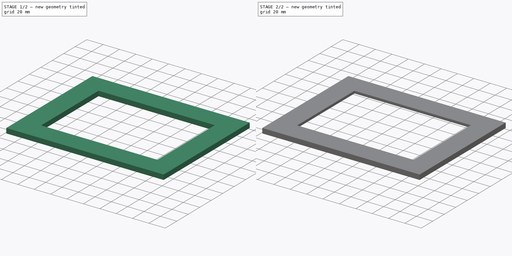
[diagram: build sequence overview — one tinted view per stage of 2, left to right]
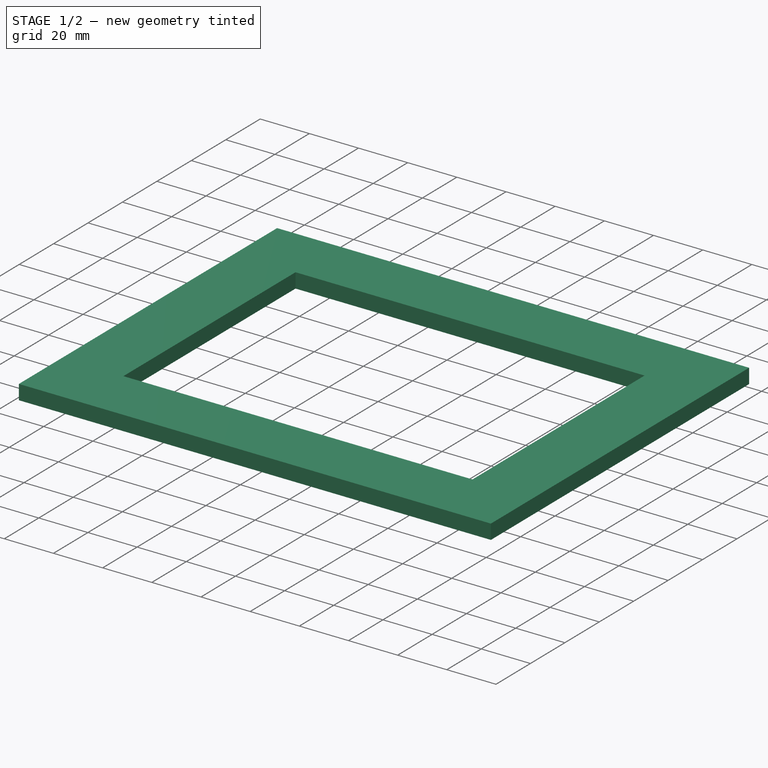
[diagram: stage 1 of 2 — iso view after this stage's code; geometry added in this stage tinted green]
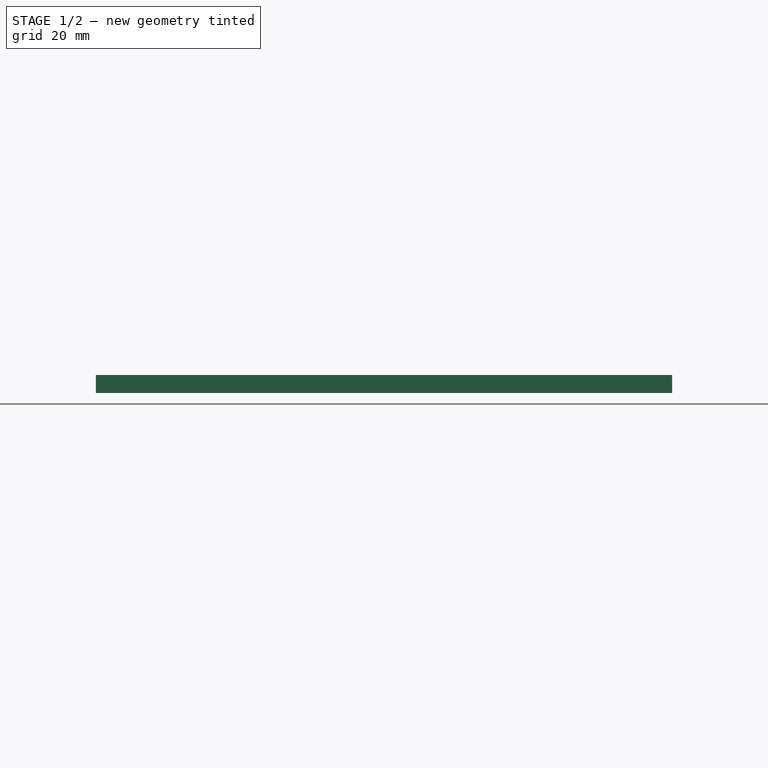
[diagram: stage 1 of 2 — front view after this stage's code; geometry added in this stage tinted green]
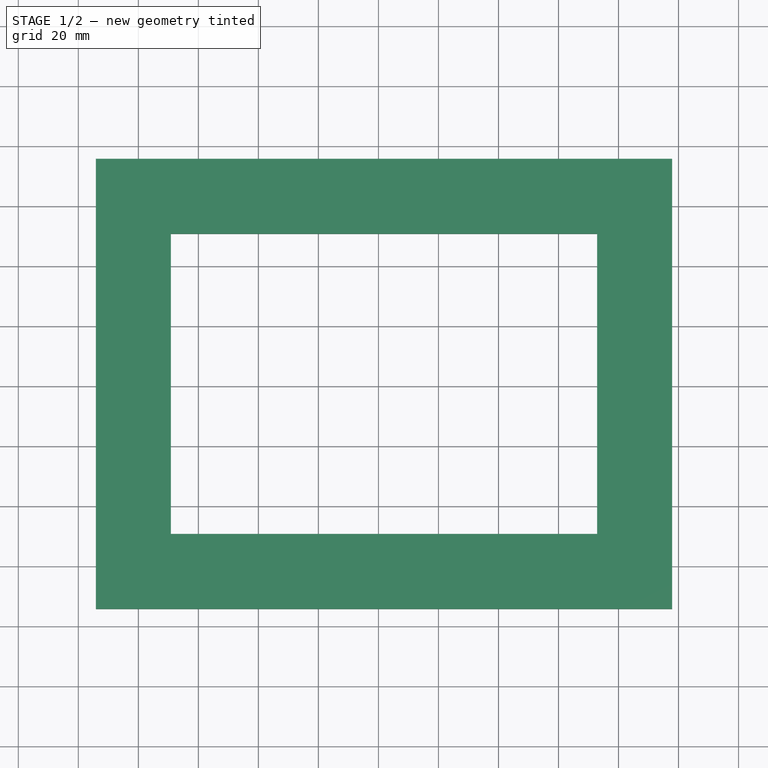
[diagram: stage 1 of 2 — top view after this stage's code; geometry added in this stage tinted green]
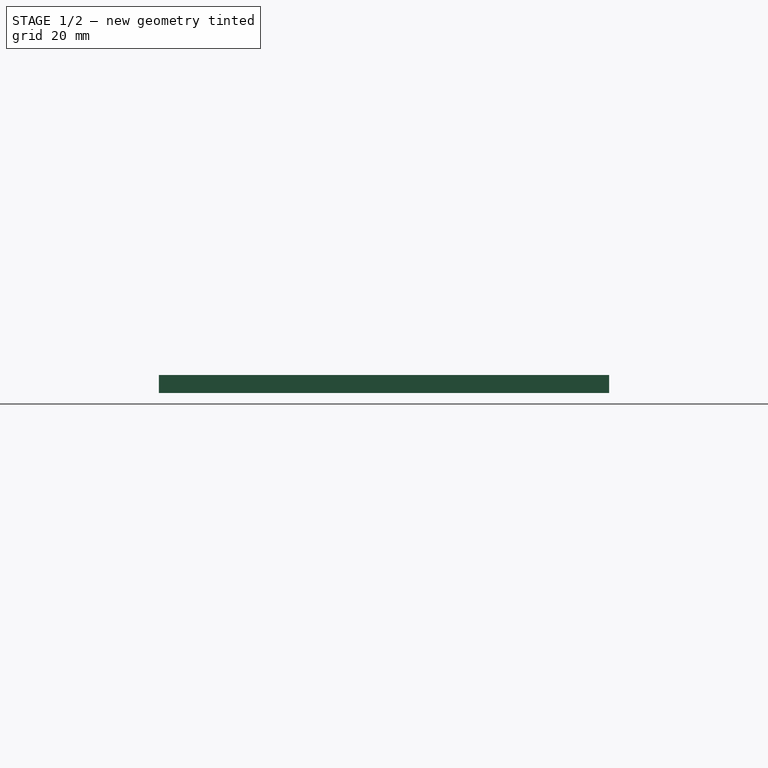
[diagram: stage 1 of 2 — right view after this stage's code; geometry added in this stage tinted green]
FCSTD DOCUMENT  (FreeCAD 0.21R33771 (Git))
Label: bezel-integration3 JUST ADDED ALL BUTTONS
License: All rights reserved
LicenseURL: http://en.wikipedia.org/wiki/All_rights_reserved
objects: Sketcher::SketchObject×4, PartDesign::Pad×1, PartDesign::Pocket×1, PartDesign::Body×1
note: 9 computed .brp shape members not serialized (recipe doc carries the construction recipe); baked Part::Feature solids carry a one-line shape summary decoded from their .brp

FEATURE [Sketcher::SketchObject] Sketch  label="bezel"
  FullyConstrained = true
  MapMode = 5
  Support = -> [XY_Plane]
  sketch-geometry (8):
    g0: LineSegment StartX=-69.1431 StartY=50.8022 StartZ=0 EndX=72.8569 EndY=50.8022 EndZ=0
    g1: LineSegment StartX=72.8569 StartY=50.8022 StartZ=0 EndX=72.8569 EndY=-49.1978 EndZ=0
    g2: LineSegment StartX=72.8569 StartY=-49.1978 StartZ=0 EndX=-69.1431 EndY=-49.1978 EndZ=0
    g3: LineSegment StartX=-69.1431 StartY=-49.1978 StartZ=0 EndX=-69.1431 EndY=50.8022 EndZ=0
    g4: LineSegment StartX=-94.1431 StartY=75.8022 StartZ=0 EndX=97.8569 EndY=75.8022 EndZ=0
    g5: LineSegment StartX=97.8569 StartY=75.8022 StartZ=0 EndX=97.8569 EndY=-74.1978 EndZ=0
    g6: LineSegment StartX=97.8569 StartY=-74.1978 StartZ=0 EndX=-94.1431 EndY=-74.1978 EndZ=0
    g7: LineSegment StartX=-94.1431 StartY=-74.1978 StartZ=0 EndX=-94.1431 EndY=75.8022 EndZ=0
  constraints (24):
    c: Coincident(g0,g1)
    c: Coincident(g1,g2)
    c: Coincident(g2,g3)
    c: Coincident(g3,g0)
    c: Horizontal(g0)
    c: Horizontal(g2)
    c: Vertical(g1)
    c: Vertical(g3)
    c: Coincident(g4,g5)
    c: Coincident(g5,g6)
    c: Coincident(g6,g7)
    c: Coincident(g7,g4)
    c: Horizontal(g4)
    c: Horizontal(g6)
    c: Vertical(g5)
    c: Vertical(g7)
    c: Distance(g-1,g0) = 85.8
    c: Distance(g-1,g0) = 88.82
    c: DistanceX(g0,g0) = 142
    c: Distance(g2,g6) = 25
    c: DistanceY(g1,g1) = 100
    c: Distance(g0,g4) = 25
    c: Distance(g0,g7) = 25
    c: Distance(g0,g5) = 25
FEATURE [PartDesign::Pad] Pad  label="Bezel"
  Direction = (0,0,1)
  Length = 6
  Length2 = 10
  Profile = -> Sketch
  ReferenceAxis = -> Sketch [N_Axis]
  Type = 0
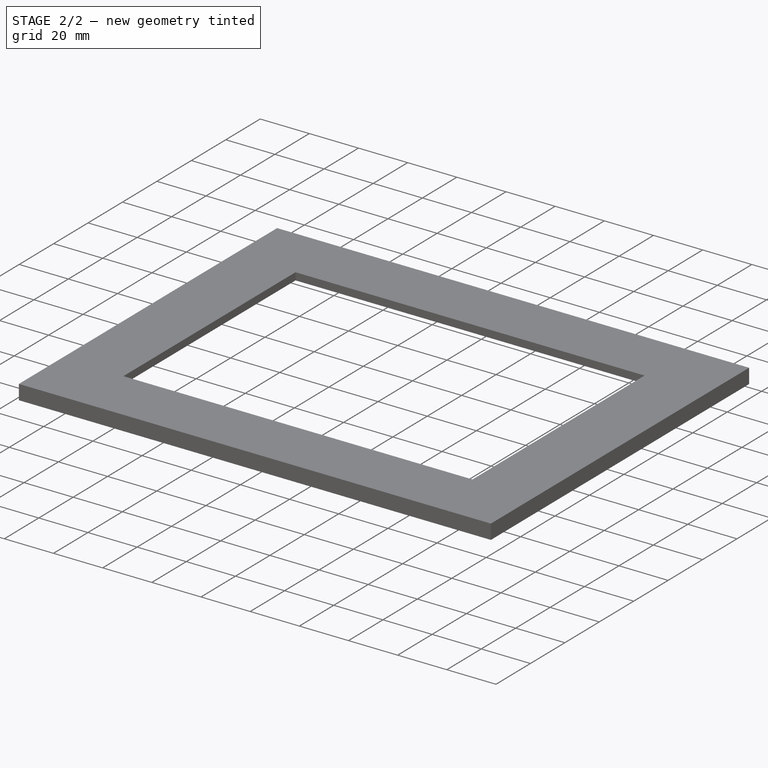
[diagram: stage 2 of 2 — iso view after this stage's code; geometry added in this stage tinted green]
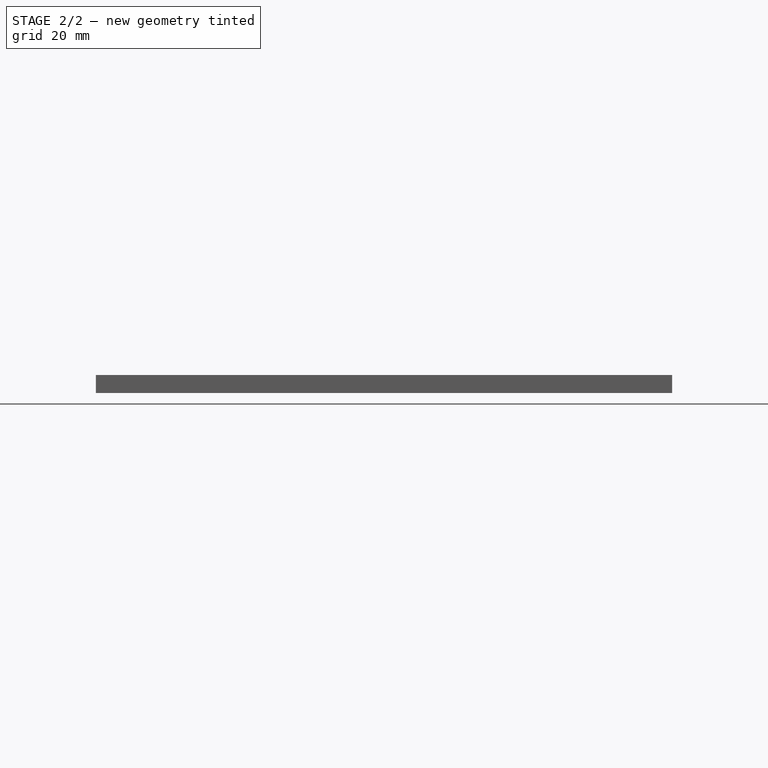
[diagram: stage 2 of 2 — front view after this stage's code; geometry added in this stage tinted green]
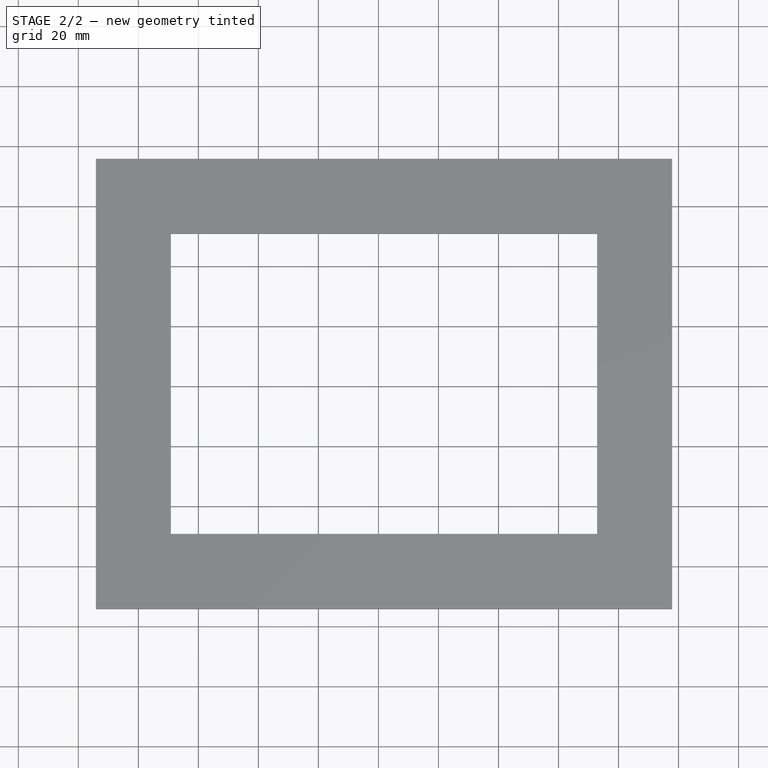
[diagram: stage 2 of 2 — top view after this stage's code; geometry added in this stage tinted green]
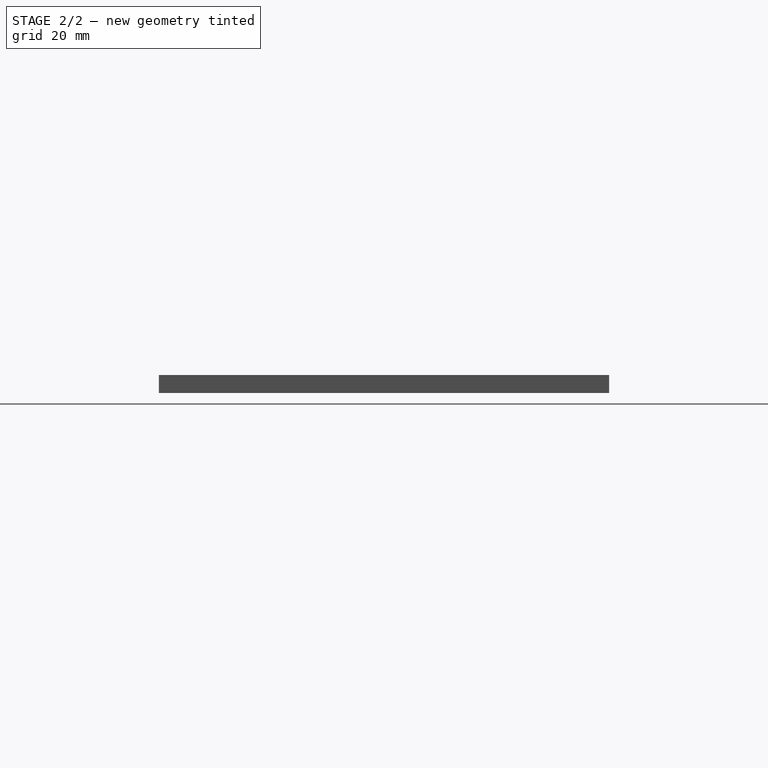
[diagram: stage 2 of 2 — right view after this stage's code; geometry added in this stage tinted green]
FEATURE [Sketcher::SketchObject] Sketch001  label="Lcd Inset"
  FullyConstrained = true
  MapMode = 5
  Placement = pos=(0,0,0) rot=(1,0,0;3.14159rad)
  Support = -> [Pad]
  sketch-geometry (4):
    g0: LineSegment StartX=-78.66 StartY=60.5 StartZ=0 EndX=77.34 EndY=60.5 EndZ=0
    g1: LineSegment StartX=77.34 StartY=60.5 StartZ=0 EndX=77.34 EndY=-58.5 EndZ=0
    g2: LineSegment StartX=77.34 StartY=-58.5 StartZ=0 EndX=-78.66 EndY=-58.5 EndZ=0
    g3: LineSegment StartX=-78.66 StartY=-58.5 StartZ=0 EndX=-78.66 EndY=60.5 EndZ=0
  constraints (12):
    c: Coincident(g0,g1)
    c: Coincident(g1,g2)
    c: Coincident(g2,g3)
    c: Coincident(g3,g0)
    c: Horizontal(g0)
    c: Horizontal(g2)
    c: Vertical(g1)
    c: Vertical(g3)
    c: DistanceX(g0,g0) = 156
    c: DistanceY(g1,g1) = 119
    c: DistanceX(g-2,g2) = -78.66
    c: Distance(g-1,g0) = 60.5
FEATURE [PartDesign::Pocket] Pocket
  BaseFeature = -> Pad
  Direction = (0,0,1)
  Length = 3
  Length2 = 5
  Profile = -> Sketch001
  ReferenceAxis = -> Sketch001 [N_Axis]
  Type = 0
FEATURE [Sketcher::SketchObject] Sketch002  label="bottom buttons"
  FullyConstrained = true
  MapMode = 5
  Placement = pos=(0,0,6) rot=(0,0,1;0rad)
  Support = -> [Pocket]
  sketch-geometry (36):
    g0: LineSegment StartX=-94.14 StartY=75.79 StartZ=0 EndX=97.85 EndY=75.79 EndZ=0
    g1: LineSegment StartX=97.85 StartY=75.79 StartZ=0 EndX=97.85 EndY=-74.19 EndZ=0
    g2: LineSegment StartX=97.85 StartY=-74.19 StartZ=0 EndX=-94.14 EndY=-74.19 EndZ=0
    g3: LineSegment StartX=-94.14 StartY=-74.19 StartZ=0 EndX=-94.14 EndY=75.79 EndZ=0
    g4: LineSegment StartX=-67.14 StartY=-70.19 StartZ=0 EndX=-54.14 EndY=-70.19 EndZ=0
    g5: LineSegment StartX=-54.14 StartY=-70.19 StartZ=0 EndX=-54.14 EndY=-60.19 EndZ=0
    g6: LineSegment StartX=-54.14 StartY=-60.19 StartZ=0 EndX=-67.14 EndY=-60.19 EndZ=0
    g7: LineSegment StartX=-67.14 StartY=-60.19 StartZ=0 EndX=-67.14 EndY=-70.19 EndZ=0
    g8: LineSegment StartX=57.85 StartY=-60.19 StartZ=0 EndX=70.85 EndY=-60.19 EndZ=0
    g9: LineSegment StartX=70.85 StartY=-60.19 StartZ=0 EndX=70.85 EndY=-70.19 EndZ=0
    g10: LineSegment StartX=70.85 StartY=-70.19 StartZ=0 EndX=57.85 EndY=-70.19 EndZ=0
    g11: LineSegment StartX=57.85 StartY=-70.19 StartZ=0 EndX=57.85 EndY=-60.19 EndZ=0
    g12: LineSegment StartX=-46.71 StartY=-60.19 StartZ=0 EndX=-36.71 EndY=-60.19 EndZ=0
    g13: LineSegment StartX=-36.71 StartY=-60.19 StartZ=0 EndX=-36.71 EndY=-70.19 EndZ=0
    g14: LineSegment StartX=-36.71 StartY=-70.19 StartZ=0 EndX=-46.71 EndY=-70.19 EndZ=0
    g15: LineSegment StartX=-46.71 StartY=-70.19 StartZ=0 EndX=-46.71 EndY=-60.19 EndZ=0
    g16: LineSegment StartX=-29.22 StartY=-60.19 StartZ=0 EndX=-19.22 EndY=-60.19 EndZ=0
    g17: LineSegment StartX=-19.22 StartY=-60.19 StartZ=0 EndX=-19.22 EndY=-70.19 EndZ=0
    g18: LineSegment StartX=-19.22 StartY=-70.19 StartZ=0 EndX=-29.22 EndY=-70.19 EndZ=0
    g19: LineSegment StartX=-29.22 StartY=-70.19 StartZ=0 EndX=-29.22 EndY=-60.19 EndZ=0
    g20: LineSegment StartX=-11.79 StartY=-60.19 StartZ=0 EndX=-1.79 EndY=-60.19 EndZ=0
    g21: LineSegment StartX=-1.79 StartY=-60.19 StartZ=0 EndX=-1.79 EndY=-70.19 EndZ=0
    g22: LineSegment StartX=-1.79 StartY=-70.19 StartZ=0 EndX=-11.79 EndY=-70.19 EndZ=0
    g23: LineSegment StartX=-11.79 StartY=-70.19 StartZ=0 EndX=-11.79 EndY=-60.19 EndZ=0
    g24: LineSegment StartX=5.64 StartY=-60.19 StartZ=0 EndX=15.64 EndY=-60.19 EndZ=0
    g25: LineSegment StartX=15.64 StartY=-60.19 StartZ=0 EndX=15.64 EndY=-70.19 EndZ=0
    g26: LineSegment StartX=15.64 StartY=-70.19 StartZ=0 EndX=5.64 EndY=-70.19 EndZ=0
    g27: LineSegment StartX=5.64 StartY=-70.19 StartZ=0 EndX=5.64 EndY=-60.19 EndZ=0
    g28: LineSegment StartX=23.07 StartY=-60.19 StartZ=0 EndX=33.07 EndY=-60.19 EndZ=0
    g29: LineSegment StartX=33.07 StartY=-60.19 StartZ=0 EndX=33.07 EndY=-70.19 EndZ=0
    g30: LineSegment StartX=33.07 StartY=-70.19 StartZ=0 EndX=23.07 EndY=-70.19 EndZ=0
    g31: LineSegment StartX=23.07 StartY=-70.19 StartZ=0 EndX=23.07 EndY=-60.19 EndZ=0
    g32: LineSegment StartX=40.5 StartY=-60.19 StartZ=0 EndX=50.5 EndY=-60.19 EndZ=0
    g33: LineSegment StartX=50.5 StartY=-60.19 StartZ=0 EndX=50.5 EndY=-70.19 EndZ=0
    g34: LineSegment StartX=50.5 StartY=-70.19 StartZ=0 EndX=40.5 EndY=-70.19 EndZ=0
    g35: LineSegment StartX=40.5 StartY=-70.19 StartZ=0 EndX=40.5 EndY=-60.19 EndZ=0
  constraints (108):
    c: Coincident(g0,g1)
    c: Coincident(g1,g2)
    c: Coincident(g2,g3)
    c: Coincident(g3,g0)
    c: Horizontal(g0)
    c: Horizontal(g2)
    c: Vertical(g1)
    c: Vertical(g3)
    c: DistanceY(g-1,g1) = -74.19
    c: DistanceX(g-2,g2) = -94.14
    c: DistanceY(g3,g3) = 149.98
    c: DistanceX(g2,g2) = 191.99
    c: Coincident(g4,g5)
    c: Coincident(g5,g6)
    c: Coincident(g6,g7)
    c: Coincident(g7,g4)
    c: Horizontal(g4)
    c: Horizontal(g6)
    c: Vertical(g5)
    c: Vertical(g7)
    c: DistanceX(g4,g4) = 13
    c: DistanceY(g5,g5) = 10
    c: Distance(g4,g2) = 4
    c: Distance(g4,g3) = 27
    c: Coincident(g8,g9)
    c: Coincident(g9,g10)
    c: Coincident(g10,g11)
    c: Coincident(g11,g8)
    c: Horizontal(g8)
    c: Horizontal(g10)
    c: Vertical(g9)
    c: Vertical(g11)
    c: DistanceX(g10,g10) = 13
    c: DistanceY(g9,g9) = 10
    c: Distance(g9,g1) = 27
    c: Coincident(g12,g13)
    c: Coincident(g13,g14)
    c: Coincident(g14,g15)
    c: Coincident(g15,g12)
    c: Horizontal(g12)
    c: Horizontal(g14)
    c: Vertical(g13)
    c: Vertical(g15)
    c: Coincident(g16,g17)
    c: Coincident(g17,g18)
    c: Coincident(g18,g19)
    c: Coincident(g19,g16)
    c: Horizontal(g16)
    c: Horizontal(g18)
    c: Vertical(g17)
    c: Vertical(g19)
    c: Coincident(g20,g21)
    c: Coincident(g21,g22)
    c: Coincident(g22,g23)
    c: Coincident(g23,g20)
    c: Horizontal(g20)
    c: Horizontal(g22)
    c: Vertical(g21)
    c: Vertical(g23)
    c: Coincident(g24,g25)
    c: Coincident(g25,g26)
    c: Coincident(g26,g27)
    c: Coincident(g27,g24)
    c: Horizontal(g24)
    c: Horizontal(g26)
    c: Vertical(g25)
    c: Vertical(g27)
    c: Coincident(g28,g29)
    c: Coincident(g29,g30)
    c: Coincident(g30,g31)
    c: Coincident(g31,g28)
    c: Horizontal(g28)
    c: Horizontal(g30)
    c: Vertical(g29)
    c: Vertical(g31)
    c: Coincident(g32,g33)
    c: Coincident(g33,g34)
    c: Coincident(g34,g35)
    c: Coincident(g35,g32)
    c: Horizontal(g32)
    c: Horizontal(g34)
    c: Vertical(g33)
    c: Vertical(g35)
    c: DistanceX(g14,g14) = 10
    c: DistanceY(g13,g13) = 10
    c: Distance(g14,g5) = 7.43
    c: DistanceX(g18,g18) = 10
    c: DistanceY(g19,g19) = 10
    c: DistanceX(g22,g22) = 10
    c: DistanceY(g21,g21) = 10
    c: Distance(g22,g17) = 7.43
    c: DistanceX(g26,g26) = 10
    c: DistanceY(g27,g27) = 10
    c: Distance(g26,g21) = 7.43
    c: DistanceX(g30,g30) = 10
    c: DistanceY(g29,g29) = 10
    c: Distance(g30,g25) = 7.43
    c: DistanceY(g33,g33) = 10
    c: DistanceX(g34,g34) = 10
    c: DistanceX(g29,g34) = 7.43
    c: Distance(g13,g2) = 4
    c: Distance(g18,g2) = 4
    c: Distance(g22,g2) = 4
    c: Distance(g26,g2) = 4
    c: Distance(g30,g2) = 4
    c: Distance(g34,g2) = 4
    c: Distance(g10,g2) = 4
    c: Distance(g33,g10) = 7.35
FEATURE [Sketcher::SketchObject] Sketch003
  FullyConstrained = true
  MapMode = 5
  Placement = pos=(0,0,6) rot=(0,0,1;0rad)
  Support = -> [Pocket]
  sketch-geometry (99):
    g0: LineSegment StartX=-89 StartY=-52.44 StartZ=0 EndX=-76 EndY=-52.44 EndZ=0
    g1: LineSegment StartX=-76 StartY=-52.44 StartZ=0 EndX=-76 EndY=-62.44 EndZ=0
    g2: LineSegment StartX=-76 StartY=-62.44 StartZ=0 EndX=-89 EndY=-62.44 EndZ=0
    g3: LineSegment StartX=-89 StartY=-62.44 StartZ=0 EndX=-89 EndY=-52.44 EndZ=0
    g4: LineSegment StartX=-94 StartY=-64.33 StartZ=0 EndX=-94 EndY=-74.33 EndZ=0
    g5: LineSegment StartX=-89 StartY=-45.69 StartZ=0 EndX=-76 EndY=-45.69 EndZ=0
    g6: LineSegment StartX=-76 StartY=-45.69 StartZ=0 EndX=-76 EndY=-55.69 EndZ=0
    g7: LineSegment StartX=-76 StartY=-55.69 StartZ=0 EndX=-89 EndY=-55.69 EndZ=0
    g8: LineSegment StartX=-89 StartY=-55.69 StartZ=0 EndX=-89 EndY=-45.69 EndZ=0
    g9: LineSegment StartX=-89 StartY=-32.44 StartZ=0 EndX=-79 EndY=-32.44 EndZ=0
    g10: LineSegment StartX=-79 StartY=-32.44 StartZ=0 EndX=-79 EndY=-42.44 EndZ=0
    g11: LineSegment StartX=-79 StartY=-42.44 StartZ=0 EndX=-89 EndY=-42.44 EndZ=0
    g12: LineSegment StartX=-89 StartY=-42.44 StartZ=0 EndX=-89 EndY=-32.44 EndZ=0
    g13: LineSegment StartX=-89 StartY=-19.19 StartZ=0 EndX=-79 EndY=-19.19 EndZ=0
    g14: LineSegment StartX=-79 StartY=-19.19 StartZ=0 EndX=-79 EndY=-29.19 EndZ=0
    g15: LineSegment StartX=-79 StartY=-29.19 StartZ=0 EndX=-89 EndY=-29.19 EndZ=0
    g16: LineSegment StartX=-89 StartY=-29.19 StartZ=0 EndX=-89 EndY=-19.19 EndZ=0
    g17: LineSegment StartX=-89 StartY=-5.94 StartZ=0 EndX=-79 EndY=-5.94 EndZ=0
    g18: LineSegment StartX=-79 StartY=-5.94 StartZ=0 EndX=-79 EndY=-15.94 EndZ=0
    g19: LineSegment StartX=-79 StartY=-15.94 StartZ=0 EndX=-89 EndY=-15.94 EndZ=0
    g20: LineSegment StartX=-89 StartY=-15.94 StartZ=0 EndX=-89 EndY=-5.94 EndZ=0
    g21: LineSegment StartX=-89 StartY=7.31 StartZ=0 EndX=-79 EndY=7.31 EndZ=0
    g22: LineSegment StartX=-79 StartY=7.31 StartZ=0 EndX=-79 EndY=-2.69 EndZ=0
    g23: LineSegment StartX=-79 StartY=-2.69 StartZ=0 EndX=-89 EndY=-2.69 EndZ=0
    g24: LineSegment StartX=-89 StartY=-2.69 StartZ=0 EndX=-89 EndY=7.31 EndZ=0
    g25: LineSegment StartX=-89 StartY=20.56 StartZ=0 EndX=-79 EndY=20.56 EndZ=0
    g26: LineSegment StartX=-79 StartY=20.56 StartZ=0 EndX=-79 EndY=10.56 EndZ=0
    g27: LineSegment StartX=-79 StartY=10.56 StartZ=0 EndX=-89 EndY=10.56 EndZ=0
    g28: LineSegment StartX=-89 StartY=10.56 StartZ=0 EndX=-89 EndY=20.56 EndZ=0
    g29: LineSegment StartX=-89 StartY=33.81 StartZ=0 EndX=-79 EndY=33.81 EndZ=0
    g30: LineSegment StartX=-79 StartY=33.81 StartZ=0 EndX=-79 EndY=23.81 EndZ=0
    g31: LineSegment StartX=-79 StartY=23.81 StartZ=0 EndX=-89 EndY=23.81 EndZ=0
    g32: LineSegment StartX=-89 StartY=23.81 StartZ=0 EndX=-89 EndY=33.81 EndZ=0
    g33: Circle CenterX=-84 CenterY=52 CenterZ=0 NormalX=0 NormalY=0 NormalZ=1 AngleXU=0 Radius=3.5
    g34: LineSegment StartX=79.85 StartY=-52.44 StartZ=0 EndX=92.85 EndY=-52.44 EndZ=0
    g35: LineSegment StartX=92.85 StartY=-52.44 StartZ=0 EndX=92.85 EndY=-62.44 EndZ=0
    g36: LineSegment StartX=92.85 StartY=-62.44 StartZ=0 EndX=79.85 EndY=-62.44 EndZ=0
    g37: LineSegment StartX=79.85 StartY=-62.44 StartZ=0 EndX=79.85 EndY=-52.44 EndZ=0
    g38: LineSegment StartX=97.85 StartY=-74.19 StartZ=0 EndX=97.85 EndY=75.8 EndZ=0
    g39: LineSegment StartX=79.85 StartY=-39.44 StartZ=0 EndX=92.85 EndY=-39.44 EndZ=0
    g40: LineSegment StartX=92.85 StartY=-39.44 StartZ=0 EndX=92.85 EndY=-49.44 EndZ=0
    g41: LineSegment StartX=92.85 StartY=-49.44 StartZ=0 EndX=79.85 EndY=-49.44 EndZ=0
    g42: LineSegment StartX=79.85 StartY=-49.44 StartZ=0 EndX=79.85 EndY=-39.44 EndZ=0
    g43: LineSegment StartX=82.85 StartY=-26.44 StartZ=0 EndX=92.85 EndY=-26.44 EndZ=0
    g44: LineSegment StartX=92.85 StartY=-26.44 StartZ=0 EndX=92.85 EndY=-36.44 EndZ=0
    g45: LineSegment StartX=92.85 StartY=-36.44 StartZ=0 EndX=82.85 EndY=-36.44 EndZ=0
    g46: LineSegment StartX=82.85 StartY=-36.44 StartZ=0 EndX=82.85 EndY=-26.44 EndZ=0
    g47: LineSegment StartX=82.85 StartY=-13.44 StartZ=0 EndX=92.85 EndY=-13.44 EndZ=0
    g48: LineSegment StartX=92.85 StartY=-13.44 StartZ=0 EndX=92.85 EndY=-23.44 EndZ=0
    g49: LineSegment StartX=92.85 StartY=-23.44 StartZ=0 EndX=82.85 EndY=-23.44 EndZ=0
    g50: LineSegment StartX=82.85 StartY=-23.44 StartZ=0 EndX=82.85 EndY=-13.44 EndZ=0
    g51: LineSegment StartX=82.85 StartY=-0.44 StartZ=0 EndX=92.85 EndY=-0.44 EndZ=0
    g52: LineSegment StartX=92.85 StartY=-0.44 StartZ=0 EndX=92.85 EndY=-10.44 EndZ=0
    g53: LineSegment StartX=92.85 StartY=-10.44 StartZ=0 EndX=82.85 EndY=-10.44 EndZ=0
    g54: LineSegment StartX=82.85 StartY=-10.44 StartZ=0 EndX=82.85 EndY=-0.44 EndZ=0
    g55: LineSegment StartX=82.85 StartY=12.56 StartZ=0 EndX=92.85 EndY=12.56 EndZ=0
    g56: LineSegment StartX=92.85 StartY=12.56 StartZ=0 EndX=92.85 EndY=2.56 EndZ=0
    g57: LineSegment StartX=92.85 StartY=2.56 StartZ=0 EndX=82.85 EndY=2.56 EndZ=0
    g58: LineSegment StartX=82.85 StartY=2.56 StartZ=0 EndX=82.85 EndY=12.56 EndZ=0
    g59: LineSegment StartX=82.85 StartY=25.56 StartZ=0 EndX=92.85 EndY=25.56 EndZ=0
    g60: LineSegment StartX=92.85 StartY=25.56 StartZ=0 EndX=92.85 EndY=15.56 EndZ=0
    g61: LineSegment StartX=92.85 StartY=15.56 StartZ=0 EndX=82.85 EndY=15.56 EndZ=0
    g62: LineSegment StartX=82.85 StartY=15.56 StartZ=0 EndX=82.85 EndY=25.56 EndZ=0
    g63: LineSegment StartX=82.85 StartY=38.56 StartZ=0 EndX=92.85 EndY=38.56 EndZ=0
    g64: LineSegment StartX=92.85 StartY=38.56 StartZ=0 EndX=92.85 EndY=28.56 EndZ=0
    g65: LineSegment StartX=92.85 StartY=28.56 StartZ=0 EndX=82.85 EndY=28.56 EndZ=0
    g66: LineSegment StartX=82.85 StartY=28.56 StartZ=0 EndX=82.85 EndY=38.56 EndZ=0
    g67: LineSegment StartX=79.85 StartY=51.56 StartZ=0 EndX=92.85 EndY=51.56 EndZ=0
    g68: LineSegment StartX=92.85 StartY=51.56 StartZ=0 EndX=92.85 EndY=41.56 EndZ=0
    g69: LineSegment StartX=92.85 StartY=41.56 StartZ=0 EndX=79.85 EndY=41.56 EndZ=0
    g70: LineSegment StartX=79.85 StartY=41.56 StartZ=0 EndX=79.85 EndY=51.56 EndZ=0
    g71: LineSegment StartX=97.85 StartY=75.8 StartZ=0 EndX=-94 EndY=75.8 EndZ=0
    g72: Circle CenterX=-65 CenterY=65.8 CenterZ=0 NormalX=0 NormalY=0 NormalZ=1 AngleXU=0 Radius=3.5
    g73: Circle CenterX=65 CenterY=65.8 CenterZ=0 NormalX=0 NormalY=0 NormalZ=1 AngleXU=0 Radius=3.5
    g74: LineSegment StartX=-94 StartY=75.8 StartZ=0 EndX=-94 EndY=-74.33 EndZ=0
    g75: LineSegment StartX=-50 StartY=70.8 StartZ=0 EndX=-40 EndY=70.8 EndZ=0
    g76: LineSegment StartX=-40 StartY=70.8 StartZ=0 EndX=-40 EndY=60.8 EndZ=0
    g77: LineSegment StartX=-40 StartY=60.8 StartZ=0 EndX=-50 EndY=60.8 EndZ=0
    g78: LineSegment StartX=-50 StartY=60.8 StartZ=0 EndX=-50 EndY=70.8 EndZ=0
    g79: LineSegment StartX=-32 StartY=70.8 StartZ=0 EndX=-22 EndY=70.8 EndZ=0
    g80: LineSegment StartX=-22 StartY=70.8 StartZ=0 EndX=-22 EndY=60.8 EndZ=0
    g81: LineSegment StartX=-22 StartY=60.8 StartZ=0 EndX=-32 EndY=60.8 EndZ=0
    g82: LineSegment StartX=-32 StartY=60.8 StartZ=0 EndX=-32 EndY=70.8 EndZ=0
    g83: LineSegment StartX=-14 StartY=70.8 StartZ=0 EndX=-4 EndY=70.8 EndZ=0
    g84: LineSegment StartX=-4 StartY=70.8 StartZ=0 EndX=-4 EndY=60.8 EndZ=0
    g85: LineSegment StartX=-4 StartY=60.8 StartZ=0 EndX=-14 EndY=60.8 EndZ=0
    g86: LineSegment StartX=-14 StartY=60.8 StartZ=0 EndX=-14 EndY=70.8 EndZ=0
    g87: LineSegment StartX=4 StartY=70.8 StartZ=0 EndX=14 EndY=70.8 EndZ=0
    g88: LineSegment StartX=14 StartY=70.8 StartZ=0 EndX=14 EndY=60.8 EndZ=0
    g89: LineSegment StartX=14 StartY=60.8 StartZ=0 EndX=4 EndY=60.8 EndZ=0
    g90: LineSegment StartX=4 StartY=60.8 StartZ=0 EndX=4 EndY=70.8 EndZ=0
    g91: LineSegment StartX=22 StartY=70.8 StartZ=0 EndX=32 EndY=70.8 EndZ=0
    g92: LineSegment StartX=32 StartY=70.8 StartZ=0 EndX=32 EndY=60.8 EndZ=0
    g93: LineSegment StartX=32 StartY=60.8 StartZ=0 EndX=22 EndY=60.8 EndZ=0
    g94: LineSegment StartX=22 StartY=60.8 StartZ=0 EndX=22 EndY=70.8 EndZ=0
    g95: LineSegment StartX=40 StartY=70.8 StartZ=0 EndX=50 EndY=70.8 EndZ=0
    g96: LineSegment StartX=50 StartY=70.8 StartZ=0 EndX=50 EndY=60.8 EndZ=0
    g97: LineSegment StartX=50 StartY=60.8 StartZ=0 EndX=40 EndY=60.8 EndZ=0
    g98: LineSegment StartX=40 StartY=60.8 StartZ=0 EndX=40 EndY=70.8 EndZ=0
  constraints (298):
    c: Coincident(g0,g1)
    c: Coincident(g1,g2)
    c: Coincident(g2,g3)
    c: Coincident(g3,g0)
    c: Horizontal(g0)
    c: Horizontal(g2)
    c: Vertical(g1)
    c: Vertical(g3)
    c: Vertical(g4)
    c: DistanceX(g-2,g4) = -94
    c: DistanceY(g-1,g4) = -74.33
    c: Distance(g2,g4) = 5
    c: Coincident(g5,g6)
    c: Coincident(g6,g7)
    c: Coincident(g7,g8)
    c: Coincident(g8,g5)
    c: Horizontal(g5)
    c: Horizontal(g7)
    c: Vertical(g6)
    c: Vertical(g8)
    c: Coincident(g9,g10)
    c: Coincident(g10,g11)
    c: Coincident(g11,g12)
    c: Coincident(g12,g9)
    c: Horizontal(g9)
    c: Horizontal(g11)
    c: Vertical(g10)
    c: Vertical(g12)
    c: Coincident(g13,g14)
    c: Coincident(g14,g15)
    c: Coincident(g15,g16)
    c: Coincident(g16,g13)
    c: Horizontal(g13)
    c: Horizontal(g15)
    c: Vertical(g14)
    c: Vertical(g16)
    c: Coincident(g17,g18)
    c: Coincident(g18,g19)
    c: Coincident(g19,g20)
    c: Coincident(g20,g17)
    c: Horizontal(g17)
    c: Horizontal(g19)
    c: Vertical(g18)
    c: Vertical(g20)
    c: Coincident(g21,g22)
    c: Coincident(g22,g23)
    c: Coincident(g23,g24)
    c: Coincident(g24,g21)
    c: Horizontal(g21)
    c: Horizontal(g23)
    c: Vertical(g22)
    c: Vertical(g24)
    c: Coincident(g25,g26)
    c: Coincident(g26,g27)
    c: Coincident(g27,g28)
    c: Coincident(g28,g25)
    c: Horizontal(g25)
    c: Horizontal(g27)
    c: Vertical(g26)
    c: Vertical(g28)
    c: Coincident(g29,g30)
    c: Coincident(g30,g31)
    c: Coincident(g31,g32)
    c: Coincident(g32,g29)
    c: Horizontal(g29)
    c: Horizontal(g31)
    c: Vertical(g30)
    c: Vertical(g32)
    c: Distance(g7,g4) = 5
    c: DistanceY(g6,g6) = 10
    c: DistanceY(g1,g1) = 10
    c: DistanceX(g11,g11) = 10
    c: DistanceX(g15,g15) = 10
    c: DistanceX(g19,g19) = 10
    c: DistanceX(g23,g23) = 10
    c: DistanceX(g27,g27) = 10
    c: DistanceX(g29,g29) = 10
    c: DistanceY(g10,g10) = 10
    c: DistanceY(g14,g14) = 10
    c: DistanceY(g18,g18) = 10
    c: DistanceY(g22,g22) = 10
    c: DistanceY(g26,g26) = 10
    c: DistanceY(g30,g30) = 10
    c: Distance(g11,g4) = 5
    c: Distance(g15,g4) = 5
    c: Distance(g19,g4) = 5
    c: Distance(g23,g4) = 5
    c: Distance(g27,g4) = 5
    c: Distance(g31,g4) = 5
    c: Distance(g3,g7) = 3.25
    c: Distance(g5,g11) = 3.25
    c: Distance(g9,g15) = 3.25
    c: Distance(g13,g19) = 3.25
    c: Distance(g17,g23) = 3.25
    c: Distance(g27,g21) = 3.25
    c: Distance(g31,g25) = 3.25
    c: DistanceY(g-1,g1) = -62.44
    c: Diameter(g33) = 7
    c: Distance(g33,g4) = 10
    c: DistanceY(g-1,g33) = 52
    c: Coincident(g34,g35)
    c: Coincident(g35,g36)
    c: Coincident(g36,g37)
    c: Coincident(g37,g34)
    c: Horizontal(g34)
    c: Horizontal(g36)
    c: Vertical(g35)
    c: Vertical(g37)
    c: DistanceY(g-1,g35) = -62.44
    c: DistanceY(g35,g35) = 10
    c: DistanceX(g34,g34) = 13
    c: Vertical(g38)
    c: DistanceX(g-2,g38) = 97.85
    c: DistanceY(g-1,g38) = 75.8
    c: DistanceY(g38,g38) = 149.99
    c: Distance(g35,g38) = 5
    c: DistanceX(g7,g7) = 13
    c: Equal(g0,g7)
    c: Equal(g1,g4)
    c: Coincident(g39,g40)
    c: Coincident(g40,g41)
    c: Coincident(g41,g42)
    c: Coincident(g42,g39)
    c: Horizontal(g39)
    c: Horizontal(g41)
    c: Vertical(g40)
    c: Vertical(g42)
    c: Equal(g40,g35)
    c: Equal(g41,g34)
    c: Distance(g40,g38) = 5
    c: Distance(g34,g40) = 3
    c: Coincident(g43,g44)
    c: Coincident(g44,g45)
    c: Coincident(g45,g46)
    c: Coincident(g46,g43)
    c: Horizontal(g43)
    c: Horizontal(g45)
    c: Vertical(g44)
    c: Vertical(g46)
    c: DistanceX(g45,g45) = 10
    c: DistanceY(g44,g44) = 10
    c: Distance(g44,g38) = 5
    c: Distance(g39,g44) = 3
    c: Coincident(g47,g48)
    c: Coincident(g48,g49)
    c: Coincident(g49,g50)
    c: Coincident(g50,g47)
    c: Horizontal(g47)
    c: Horizontal(g49)
    c: Vertical(g48)
    c: Vertical(g50)
    c: Equal(g43,g49)
    c: Equal(g48,g44)
    c: DistanceY(g43,g48) = 3
    c: Distance(g48,g38) = 5
    c: Coincident(g51,g52)
    c: Coincident(g52,g53)
    c: Coincident(g53,g54)
    c: Coincident(g54,g51)
    c: Horizontal(g51)
    c: Horizontal(g53)
    c: Vertical(g52)
    c: Vertical(g54)
    c: Coincident(g55,g56)
    c: Coincident(g56,g57)
    c: Coincident(g57,g58)
    c: Coincident(g58,g55)
    c: Horizontal(g55)
    c: Horizontal(g57)
    c: Vertical(g56)
    c: Vertical(g58)
    c: Coincident(g59,g60)
    c: Coincident(g60,g61)
    c: Coincident(g61,g62)
    c: Coincident(g62,g59)
    c: Horizontal(g59)
    c: Horizontal(g61)
    c: Vertical(g60)
    c: Vertical(g62)
    c: Coincident(g63,g64)
    c: Coincident(g64,g65)
    c: Coincident(g65,g66)
    c: Coincident(g66,g63)
    c: Horizontal(g63)
    c: Horizontal(g65)
    c: Vertical(g64)
    c: Vertical(g66)
    c: Coincident(g67,g68)
    c: Coincident(g68,g69)
    c: Coincident(g69,g70)
    c: Coincident(g70,g67)
    c: Horizontal(g67)
    c: Vertical(g68)
    c: Equal(g53,g47)
    c: Equal(g52,g48)
    c: Equal(g57,g51)
    c: Equal(g56,g52)
    c: Distance(g52,g38) = 5
    c: Distance(g52,g47) = 3
    c: Distance(g56,g38) = 5
    c: Distance(g51,g56) = 3
    c: Equal(g61,g55)
    c: Equal(g56,g60)
    c: Distance(g60,g55) = 3
    c: Distance(g60,g38) = 5
    c: Equal(g65,g59)
    c: Equal(g64,g60)
    c: Distance(g64,g38) = 5
    c: Distance(g65,g59) = 3
    c: Equal(g70,g66)
    c: Distance(g68,g38) = 5
    c: DistanceX(g69,g69) = 13
    c: Distance(g63,g69) = 3
    c: DistanceY(g68,g68) = 10
    c: DistanceX(g-2,g67) = 79.85
    c: Coincident(g71,g38)
    c: Horizontal(g71)
    c: Diameter(g72) = 7
    c: Distance(g72,g71) = 10
    c: DistanceX(g-2,g72) = -65
    c: Diameter(g73) = 7
    c: DistanceX(g-2,g73) = 65
    c: Distance(g73,g71) = 10
    c: Coincident(g74,g71)
    c: Coincident(g74,g4)
    c: Vertical(g74)
    c: Coincident(g75,g76)
    c: Coincident(g76,g77)
    c: Coincident(g77,g78)
    c: Coincident(g78,g75)
    c: Horizontal(g75)
    c: Horizontal(g77)
    c: Vertical(g76)
    c: Vertical(g78)
    c: Coincident(g79,g80)
    c: Coincident(g80,g81)
    c: Coincident(g81,g82)
    c: Coincident(g82,g79)
    c: Horizontal(g79)
    c: Horizontal(g81)
    c: Vertical(g80)
    c: Vertical(g82)
    c: Coincident(g83,g84)
    c: Coincident(g84,g85)
    c: Coincident(g85,g86)
    c: Coincident(g86,g83)
    c: Horizontal(g83)
    c: Horizontal(g85)
    c: Vertical(g84)
    c: Vertical(g86)
    c: Coincident(g87,g88)
    c: Coincident(g88,g89)
    c: Coincident(g89,g90)
    c: Coincident(g90,g87)
    c: Horizontal(g87)
    c: Horizontal(g89)
    c: Vertical(g88)
    c: Vertical(g90)
    c: Coincident(g91,g92)
    c: Coincident(g92,g93)
    c: Coincident(g93,g94)
    c: Coincident(g94,g91)
    c: Horizontal(g91)
    c: Horizontal(g93)
    c: Vertical(g92)
    c: Vertical(g94)
    c: Coincident(g95,g96)
    c: Coincident(g96,g97)
    c: Coincident(g97,g98)
    c: Coincident(g98,g95)
    c: Horizontal(g95)
    c: Horizontal(g97)
    c: Vertical(g96)
    c: Vertical(g98)
    c: DistanceX(g75,g75) = 10
    c: DistanceY(g76,g76) = 10
    c: Equal(g82,g86)
    c: Equal(g86,g90)
    c: Equal(g90,g94)
    c: Equal(g94,g98)
    c: Equal(g98,g76)
    c: Equal(g75,g79)
    c: Equal(g79,g83)
    c: Equal(g83,g87)
    c: Equal(g87,g91)
    c: Equal(g91,g95)
    c: Distance(g75,g71) = 5
    c: Distance(g72,g78) = 15
    c: Distance(g79,g71) = 5
    c: Distance(g83,g71) = 5
    c: Distance(g87,g71) = 5
    c: Distance(g91,g71) = 5
    c: Distance(g95,g71) = 5
    c: Distance(g73,g96) = 15
    c: Distance(g92,g97) = 8
    c: Distance(g93,g88) = 8
    c: Distance(g81,g76) = 8
    c: Distance(g80,g85) = 8
FEATURE [PartDesign::Body] Body
  Group = -> [Sketch,Pad,Sketch001,Pocket,Sketch002,Sketch003]
  Origin = -> Origin
  Tip = -> Pocket
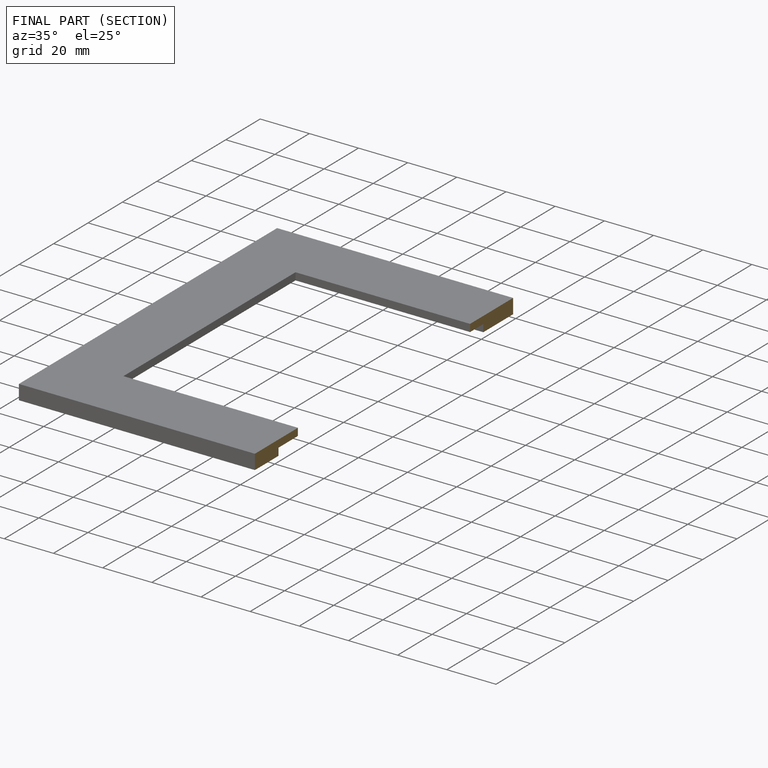
[diagram: finished part — half-section view (interior)]
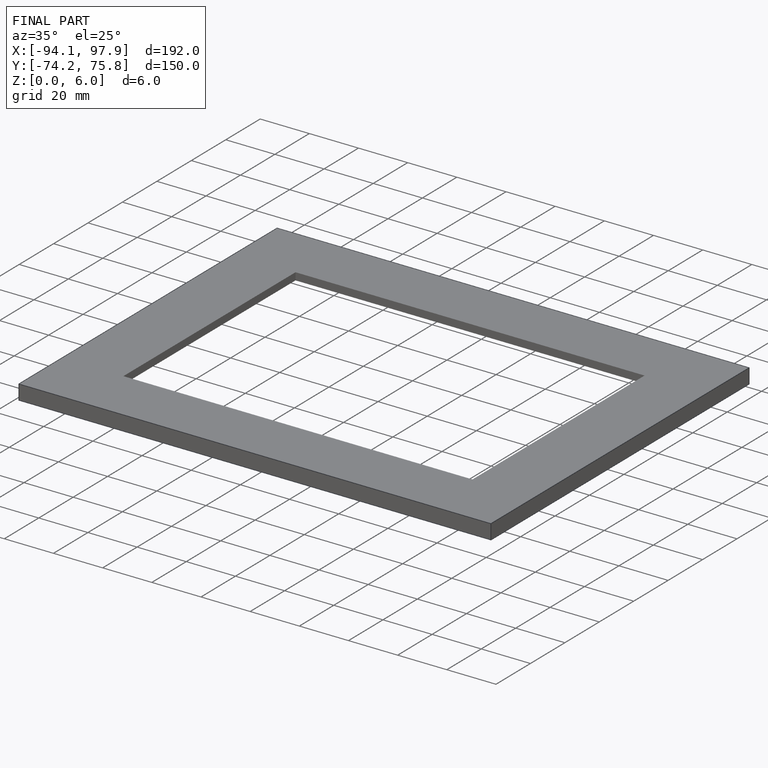
[diagram: finished part — iso view with bounding-box wireframe]
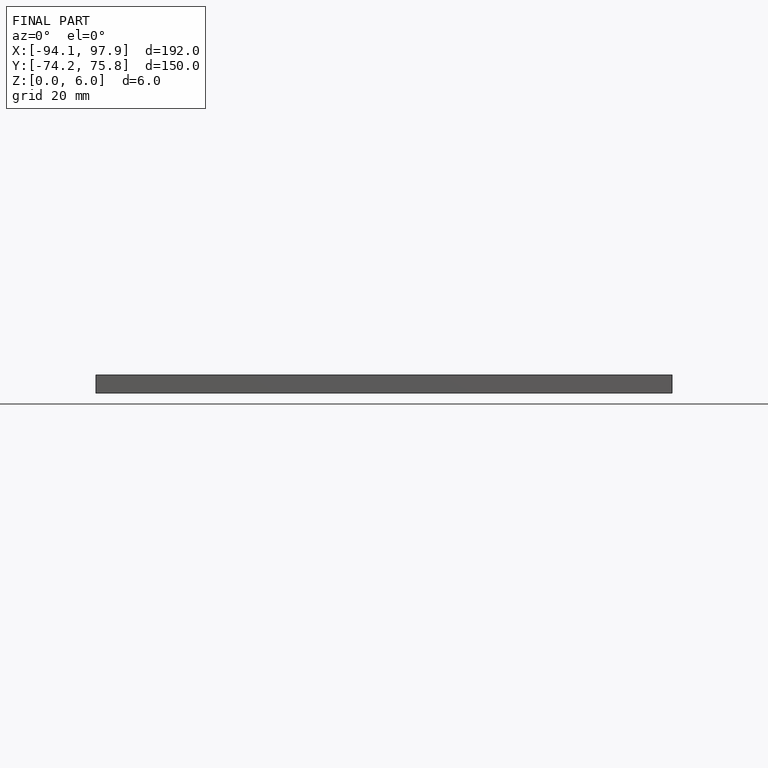
[diagram: finished part — front view with bounding-box wireframe]
